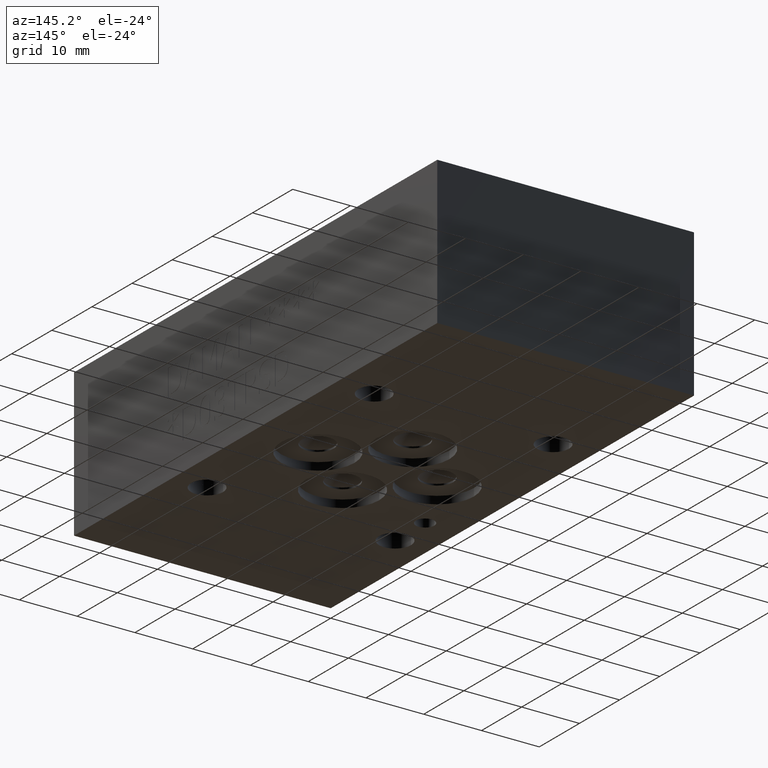
[diagram: clean part render]
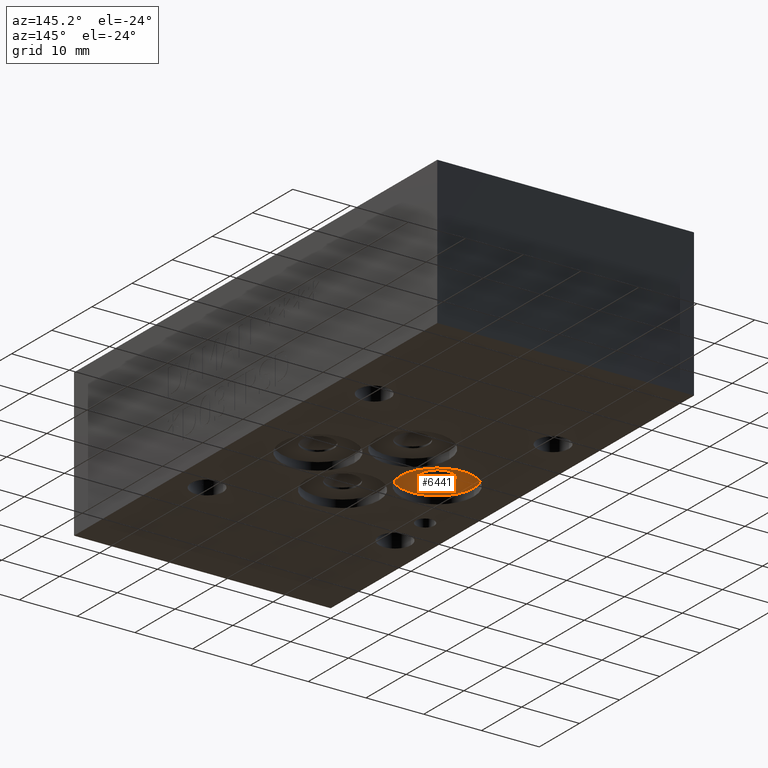
[diagram: same view with one face highlighted and labeled with its STEP entity id]
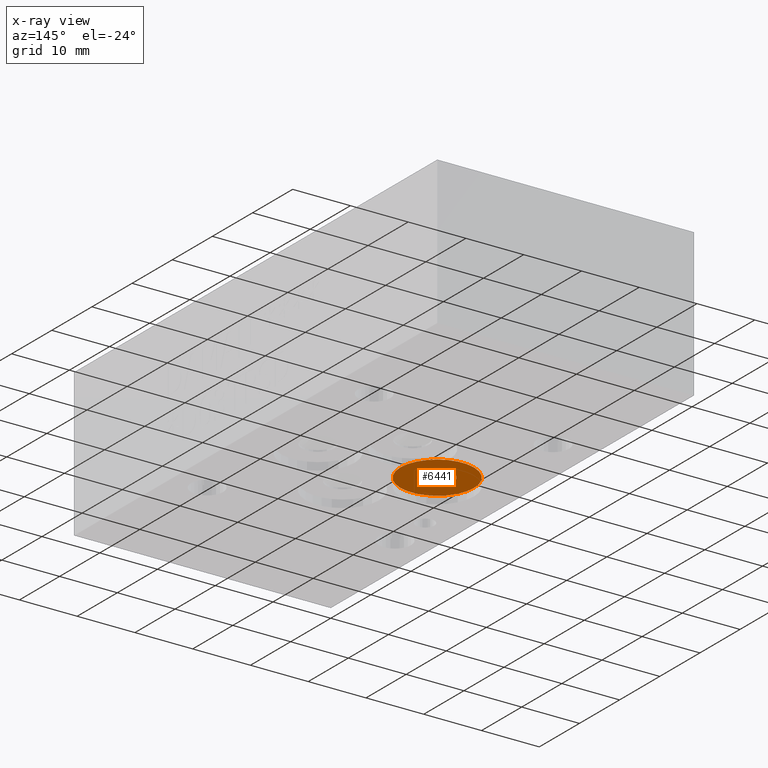
[diagram: x-ray of the same camera — body ghosted, the highlighted face saturated]
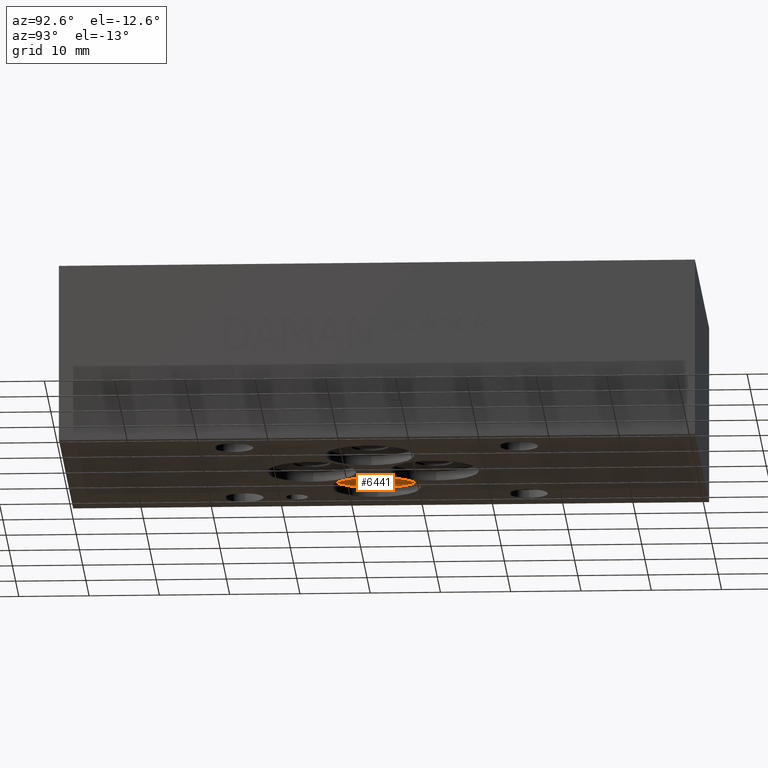
[diagram: same view with one face highlighted and labeled with its STEP entity id]
A machine part, auxiliary view. The second image highlights one B-rep face of the part: STEP entity #6441.
The next image is the same camera in x-ray: the body ghosted, the highlighted face saturated — about 0% of this face is hidden behind the body in this view.
A second angle (auxiliary view) of the same face is appended — the face is thin or edge-on in the first view.
In plain terms, the highlighted planar face has unit normal (0, 0, -1).
Its self-contained STEP definition (entity closure, byte-faithful):
#32=CIRCLE('',#6713,6.35);
#33=CIRCLE('',#6715,2.7686);
#123=FACE_BOUND('',#1002,.T.);
#350=PLANE('',#6714);
#646=FACE_OUTER_BOUND('',#1001,.T.);
#1001=EDGE_LOOP('',(#5608));
#1002=EDGE_LOOP('',(#5609));
#3095=VERTEX_POINT('',#10702);
#3096=VERTEX_POINT('',#10706);
#3947=EDGE_CURVE('',#3095,#3095,#32,.T.);
#3948=EDGE_CURVE('',#3096,#3096,#33,.T.);
#5608=ORIENTED_EDGE('',*,*,#3947,.T.);
#5609=ORIENTED_EDGE('',*,*,#3948,.F.);
#6441=ADVANCED_FACE('',(#646,#123),#350,.T.);
#6713=AXIS2_PLACEMENT_3D('',#10704,#7854,#7855);
#6714=AXIS2_PLACEMENT_3D('',#10705,#7856,#7857);
#6715=AXIS2_PLACEMENT_3D('',#10707,#7858,#7859);
#7854=DIRECTION('center_axis',(0.,0.,-1.));
#7855=DIRECTION('ref_axis',(1.,0.,0.));
#7856=DIRECTION('center_axis',(0.,0.,-1.));
#7857=DIRECTION('ref_axis',(1.,0.,0.));
#7858=DIRECTION('center_axis',(0.,0.,-1.));
#7859=DIRECTION('ref_axis',(1.,0.,0.));
#10702=CARTESIAN_POINT('',(5.5626,43.65625,1.3208));
#10704=CARTESIAN_POINT('Origin',(11.9126,43.65625,1.3208));
#10705=CARTESIAN_POINT('Origin',(11.9126,43.65625,1.3208));
#10706=CARTESIAN_POINT('',(9.144,43.65625,1.3208));
#10707=CARTESIAN_POINT('Origin',(11.9126,43.65625,1.3208));